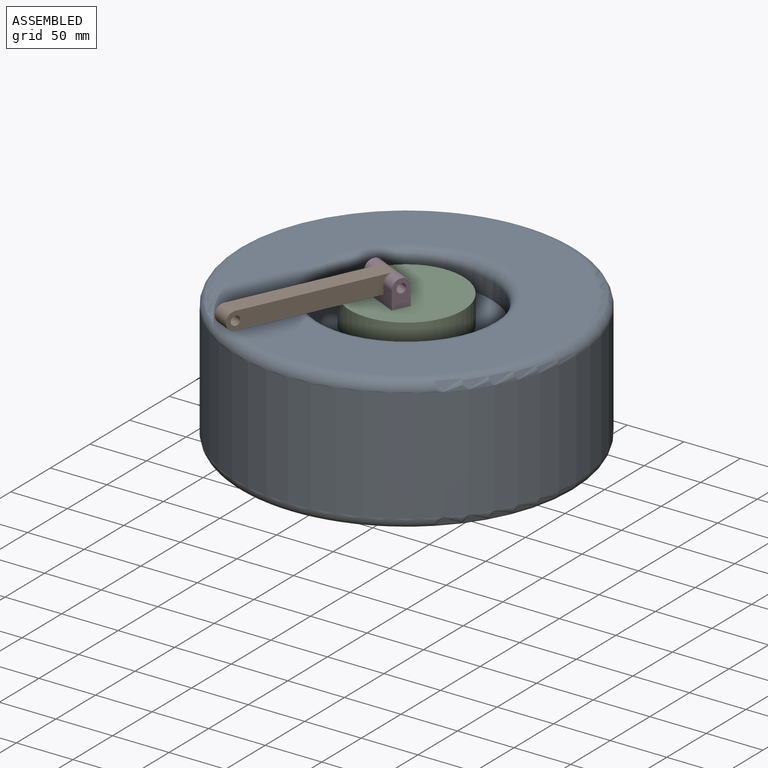
[diagram: assembled view]
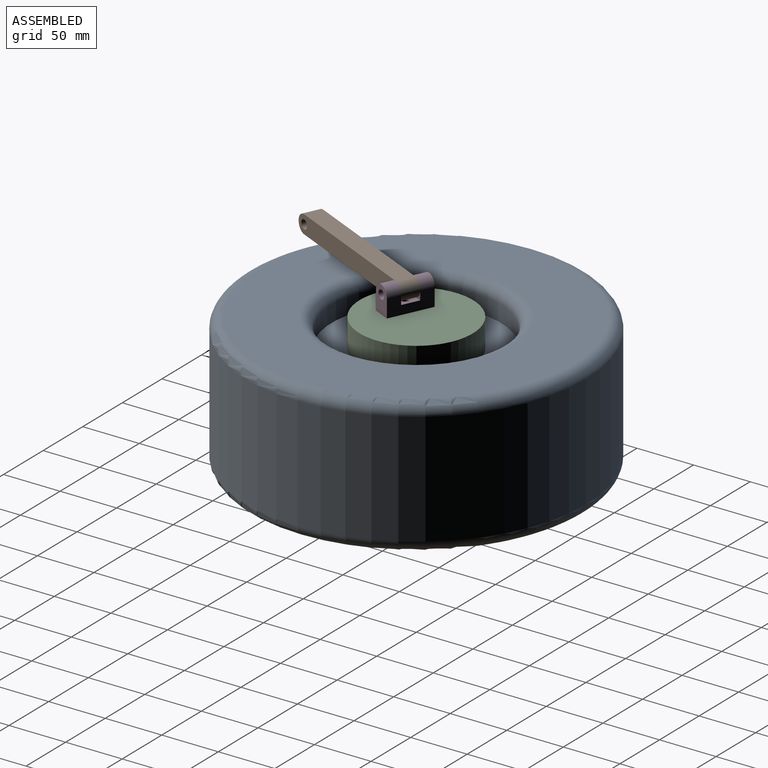
[diagram: assembled view, second angle]
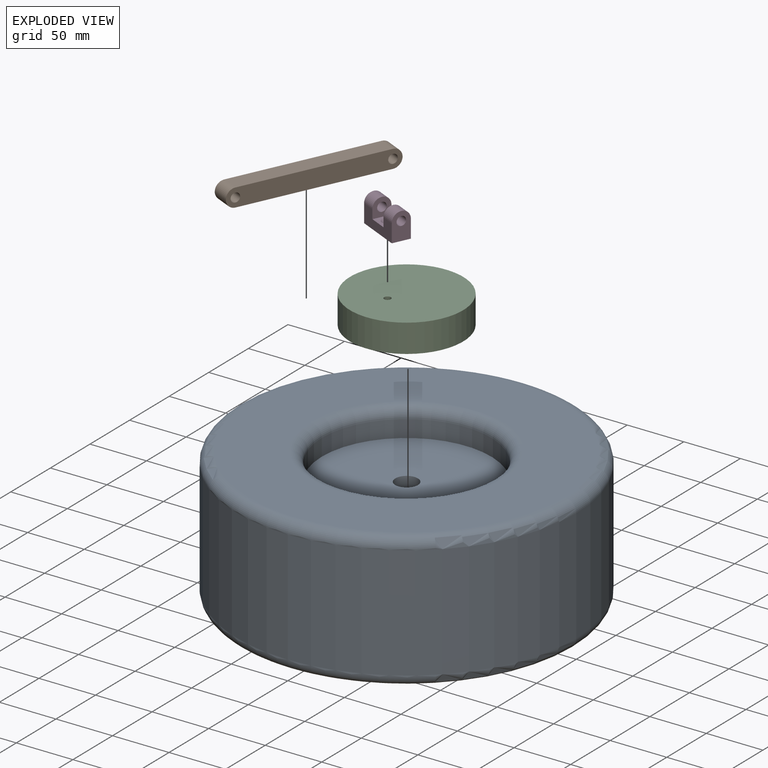
[diagram: exploded view]
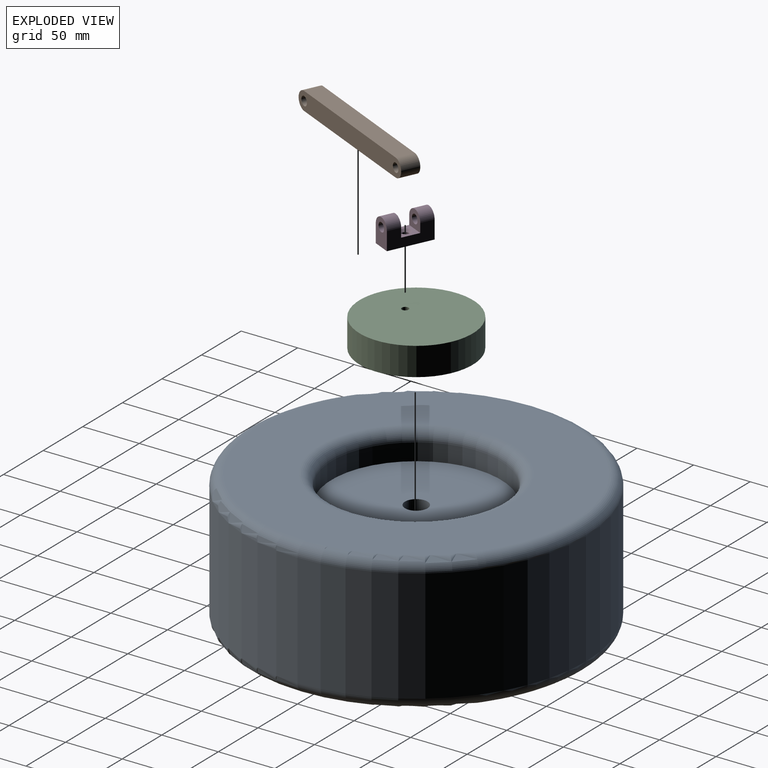
[diagram: exploded view, second angle]
ASSEMBLY  parts=4 mates=3
PART A: 12 faces, bbox 324.7x324.7x120 mm
  f0: cylinder r=10mm len=70mm, axis (0,0,-1), area 4398.2mm2, adj f5,f7
  f1: cylinder r=150mm len=300mm, axis (0,0,-1), area 94247.8mm2, adj f10,f11
  f2: plane 280x280mm, normal (0,0,1), area 38877.2mm2, adj f9,f11
  f3: plane 280x280mm, normal (0,0,-1), area 38877.2mm2, adj f8,f10
  f4: cylinder r=75mm len=150mm, axis (0,0,1), area 7068.6mm2, adj f5,f9
  f5: plane 150x150mm, normal (0,0,1), area 17357.3mm2, adj f0,f4
  f6: cylinder r=75mm len=150mm, axis (0,0,-1), area 7068.6mm2, adj f7,f8
  f7: plane 150x150mm, normal (0,0,-1), area 17357.3mm2, adj f0,f6
  f8: torus R=85mm, axis (0,0,1), area 7760.8mm2, adj f3,f6
  f9: torus R=85mm, axis (0,0,1), area 7760.8mm2, adj f2,f4
  f10: torus R=140mm, axis (0,0,1), area 14445.8mm2, adj f1,f3
  f11: torus R=140mm, axis (0,0,1), area 14445.8mm2, adj f1,f2
PART B: 11 faces, bbox 16x148x16 mm
  f0: cylinder r=8mm len=16mm, axis (-1,0,0), area 402.1mm2, adj f1,f7,f9,f10
  f1: plane 16x0.02mm, normal (0,-1,0), area 0.3mm2, adj f0,f2,f9,f10
  f2: plane 132x16mm, normal (0,0,-1), area 2112mm2, adj f1,f3,f9,f10
  f3: cylinder r=8mm len=16mm, axis (-1,0,0), area 201.1mm2, adj f2,f4,f9,f10
  f4: cylinder r=8mm len=16mm, axis (-1,0,0), area 0.3mm2, adj f3,f5,f9,f10
  f5: cylinder r=8mm len=16mm, axis (-1,0,0), area 201.1mm2, adj f4,f7,f9,f10
  f6: cylinder r=4mm len=16mm, axis (-1,0,0), area 402.1mm2, adj f9,f10
  f7: plane 132x16mm, normal (0,0,1), area 2112mm2, adj f0,f5,f9,f10
  f8: cylinder r=4mm len=16mm, axis (-1,0,0), area 402.1mm2, adj f9,f10
  f9: plane 148x16.02mm, normal (1,0,0), area 2215.5mm2, adj f0,f1,f2,f3,f4,f5,f6,f7
  f10: plane 148x16.02mm, normal (-1,0,0), area 2215.5mm2, adj f0,f1,f2,f3,f4,f5,f6,f7
PART C: 4 faces, bbox 100x100x25 mm
  f0: cylinder r=50mm len=100mm, axis (0,0,-1), area 7854mm2, adj f1,f2
  f1: plane 100x100mm, normal (0,0,1), area 7825.7mm2, adj f0,f3
  f2: plane 100x100mm, normal (0,0,-1), area 7825.7mm2, adj f0,f3
  f3: cylinder r=3mm len=25mm, axis (0,0,1), area 471.2mm2, adj f1,f2
PART D: 14 faces, bbox 40x16x24 mm
  f0: plane 40x16mm, normal (0,-1,0), area 512mm2, adj f3,f4,f5,f6,f8,f9,f10,f11
  f1: plane 40x16mm, normal (0,1,0), area 512mm2, adj f3,f4,f5,f6,f8,f9,f10,f11
  f2: cylinder r=4mm len=12mm, axis (-1,0,0), area 301.6mm2, adj f5,f10
  f3: cylinder r=8mm len=16mm, axis (-1,0,0), area 301.6mm2, adj f0,f1,f5,f10
  f4: plane 24x16mm, normal (1,0,0), area 306.3mm2, adj f0,f1,f6,f7,f8
  f5: plane 24x16mm, normal (-1,0,0), area 306.3mm2, adj f0,f1,f2,f3,f6
  f6: plane 40x16mm, normal (0,0,-1), area 611.7mm2, adj f0,f1,f4,f5,f12
  f7: cylinder r=4mm len=12mm, axis (-1,0,0), area 301.6mm2, adj f4,f11
  f8: cylinder r=8mm len=16mm, axis (-1,0,0), area 301.6mm2, adj f0,f1,f4,f11
  f9: plane 16x16mm, normal (0,0,1), area 177.5mm2, adj f0,f1,f10,f11,f13
  f10: plane 16x16mm, normal (1,0,0), area 178.3mm2, adj f0,f1,f2,f3,f9
  f11: plane 16x16mm, normal (-1,0,0), area 178.3mm2, adj f0,f1,f7,f8,f9
  f12: cylinder r=3mm len=6mm, axis (0,0,1), area 113.1mm2, adj f6,f13
  f13: cone r=3mm half-angle=45deg, axis (0,0,1), area 71.1mm2, adj f9,f12
PLACE A at identity fixed
PLACE B rot(axis=(0,0,1),155.1deg) t=(5.05,10.89,0)mm
PLACE C rot(axis=(0,0,1),155.1deg) t=(0,0,0)mm
PLACE D rot(axis=(0,0,1),155.1deg) t=(5.05,10.89,0)mm
MATE revolute D.f2 <-> B.f0  axis (0.91,-0.42,0) through (-13.99,-11.15,76)mm
MATE fastened C.f3 <-> D.f12  axis (0,0,1) through (-6.73,-14.52,60)mm
MATE cylindrical A.f4 <-> C.f0  axis (0,0,1) through (0,0,60)mm
